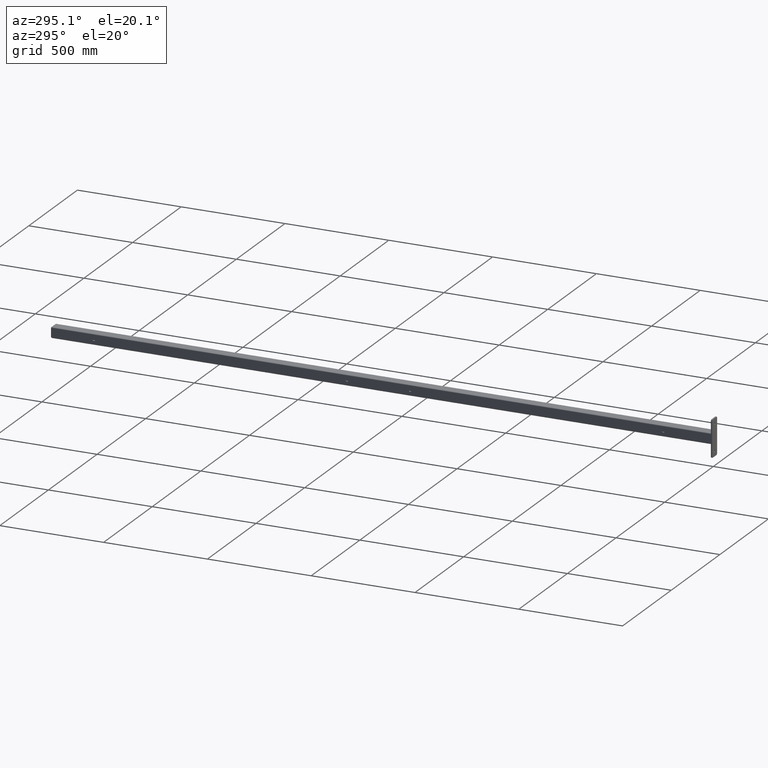
[diagram: clean part render]
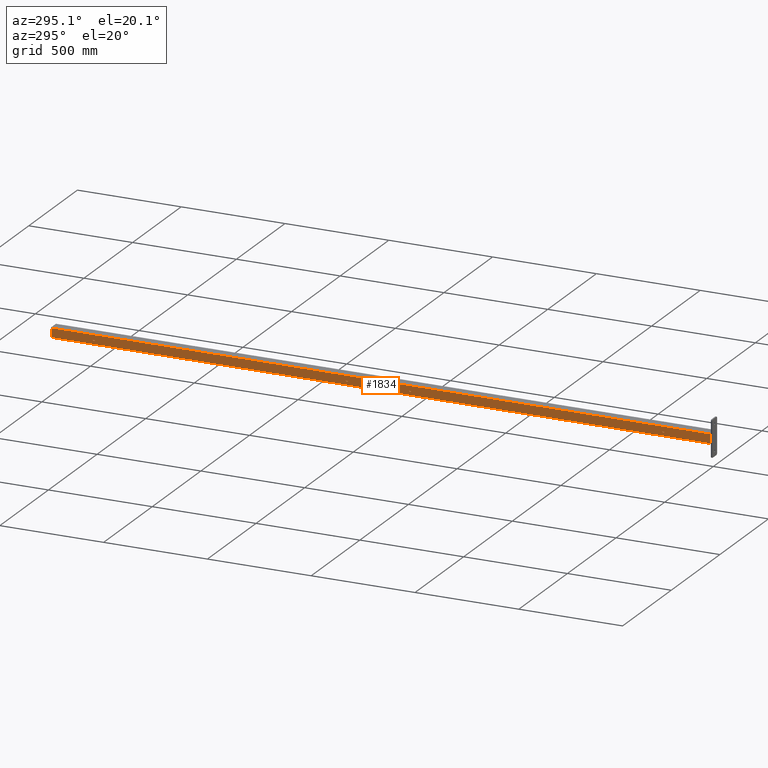
[diagram: same view with one face highlighted and labeled with its STEP entity id]
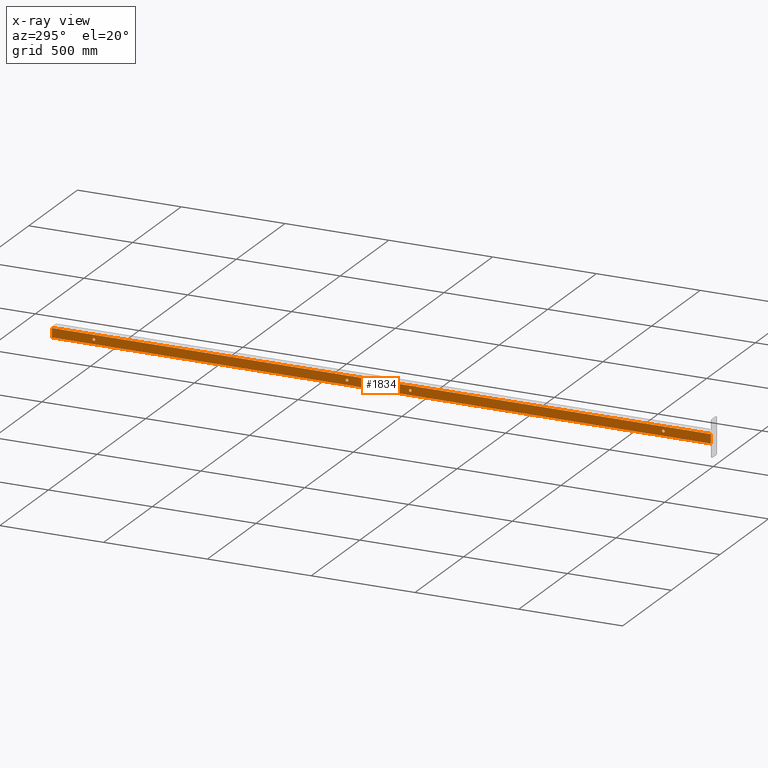
[diagram: x-ray of the same camera — body ghosted, the highlighted face saturated]
A machine part, auxiliary view. The second image highlights one B-rep face of the part: STEP entity #1834.
The next image is the same camera in x-ray: the body ghosted, the highlighted face saturated — about 0% of this face is hidden behind the body in this view.
In plain terms, the highlighted planar face has unit normal (1, 0, 0).
Its self-contained STEP definition (entity closure, byte-faithful):
#93 = CARTESIAN_POINT ( 'NONE',  ( -0.8505999999999999117, -1.000000000000000000, 62.50000000000000000 ) ) ;
#107 = VERTEX_POINT ( 'NONE', #757 ) ;
#143 = DIRECTION ( 'NONE',  ( 0.000000000000000000, 1.000000000000000000, 0.000000000000000000 ) ) ;
#213 = CARTESIAN_POINT ( 'NONE',  ( 0.8505999999999999117, -1.000000000000000000, 62.50000000000000000 ) ) ;
#230 = DIRECTION ( 'NONE',  ( 0.000000000000000000, 0.000000000000000000, 1.000000000000000000 ) ) ;
#299 = EDGE_CURVE ( 'NONE', #2016, #2016, #1312, .T. ) ;
#356 = CARTESIAN_POINT ( 'NONE',  ( -0.8505999999999999117, -1.000000000000000000, -62.50000000000000000 ) ) ;
#401 = AXIS2_PLACEMENT_3D ( 'NONE', #2730, #1375, #2339 ) ;
#411 = VERTEX_POINT ( 'NONE', #2324 ) ;
#476 = EDGE_CURVE ( 'NONE', #1298, #1298, #2250, .T. ) ;
#479 = FACE_BOUND ( 'NONE', #538, .T. ) ;
#493 = EDGE_CURVE ( 'NONE', #411, #411, #1382, .T. ) ;
#538 = EDGE_LOOP ( 'NONE', ( #3690 ) ) ;
#715 = CARTESIAN_POINT ( 'NONE',  ( -7.960204194457791533E-16, -1.000000000000000000, -6.249999999999997335 ) ) ;
#730 = DIRECTION ( 'NONE',  ( 0.000000000000000000, -0.000000000000000000, 1.000000000000000000 ) ) ;
#757 = CARTESIAN_POINT ( 'NONE',  ( 6.735557395310442023E-16, -1.000000000000000000, 5.750000000000001776 ) ) ;
#763 = CARTESIAN_POINT ( 'NONE',  ( -0.8505999999999999117, -1.000000000000000000, 62.50000000000000000 ) ) ;
#783 = FACE_OUTER_BOUND ( 'NONE', #1509, .T. ) ;
#878 = LINE ( 'NONE', #2822, #994 ) ;
#994 = VECTOR ( 'NONE', #1870, 39.37007874015748143 ) ;
#1067 = EDGE_LOOP ( 'NONE', ( #1279 ) ) ;
#1134 = ORIENTED_EDGE ( 'NONE', *, *, #3466, .F. ) ;
#1143 = EDGE_LOOP ( 'NONE', ( #1613 ) ) ;
#1203 = EDGE_LOOP ( 'NONE', ( #3966 ) ) ;
#1205 = CARTESIAN_POINT ( 'NONE',  ( -6.674325055353075830E-15, -1.000000000000000000, -54.50000000000000711 ) ) ;
#1279 = ORIENTED_EDGE ( 'NONE', *, *, #3039, .F. ) ;
#1292 = DIRECTION ( 'NONE',  ( -0.000000000000000000, -1.000000000000000000, -0.000000000000000000 ) ) ;
#1298 = VERTEX_POINT ( 'NONE', #715 ) ;
#1312 = CIRCLE ( 'NONE', #3635, 0.2500000000000030531 ) ;
#1313 = CARTESIAN_POINT ( 'NONE',  ( 6.556435184794231724E-15, -1.000000000000000000, 53.50000000000000000 ) ) ;
#1375 = DIRECTION ( 'NONE',  ( -0.000000000000000000, -1.000000000000000000, -0.000000000000000000 ) ) ;
#1382 = CIRCLE ( 'NONE', #1713, 0.2500000000000030531 ) ;
#1410 = DIRECTION ( 'NONE',  ( -0.000000000000000000, -0.000000000000000000, -1.000000000000000000 ) ) ;
#1509 = EDGE_LOOP ( 'NONE', ( #2087, #1903, #1134, #3214 ) ) ;
#1613 = ORIENTED_EDGE ( 'NONE', *, *, #476, .F. ) ;
#1657 = VERTEX_POINT ( 'NONE', #213 ) ;
#1682 = DIRECTION ( 'NONE',  ( 1.000000000000000000, 0.000000000000000000, 0.000000000000000000 ) ) ;
#1713 = AXIS2_PLACEMENT_3D ( 'NONE', #1205, #1878, #230 ) ;
#1745 = VERTEX_POINT ( 'NONE', #356 ) ;
#1746 = FACE_BOUND ( 'NONE', #1067, .T. ) ;
#1834 = ADVANCED_FACE ( 'NONE', ( #3929, #1746, #2041, #479, #783 ), #3906, .F. ) ;
#1840 = CARTESIAN_POINT ( 'NONE',  ( -0.8505999999999999117, -1.000000000000000000, -62.50000000000000000 ) ) ;
#1870 = DIRECTION ( 'NONE',  ( -0.000000000000000000, -0.000000000000000000, -1.000000000000000000 ) ) ;
#1878 = DIRECTION ( 'NONE',  ( -0.000000000000000000, -1.000000000000000000, -0.000000000000000000 ) ) ;
#1903 = ORIENTED_EDGE ( 'NONE', *, *, #4069, .F. ) ;
#2016 = VERTEX_POINT ( 'NONE', #3255 ) ;
#2041 = FACE_BOUND ( 'NONE', #1143, .T. ) ;
#2087 = ORIENTED_EDGE ( 'NONE', *, *, #2843, .T. ) ;
#2197 = CIRCLE ( 'NONE', #401, 0.2499999999999998057 ) ;
#2250 = CIRCLE ( 'NONE', #3044, 0.2499999999999998057 ) ;
#2259 = EDGE_CURVE ( 'NONE', #3077, #1745, #3881, .T. ) ;
#2324 = CARTESIAN_POINT ( 'NONE',  ( -6.674325055353075830E-15, -1.000000000000000000, -54.25000000000000000 ) ) ;
#2339 = DIRECTION ( 'NONE',  ( 0.000000000000000000, 0.000000000000000000, 1.000000000000000000 ) ) ;
#2374 = CARTESIAN_POINT ( 'NONE',  ( -0.8505999999999999117, -1.000000000000000000, 62.50000000000000000 ) ) ;
#2399 = VECTOR ( 'NONE', #1682, 39.37007874015748143 ) ;
#2712 = LINE ( 'NONE', #1840, #4054 ) ;
#2730 = CARTESIAN_POINT ( 'NONE',  ( 6.735557395310442023E-16, -1.000000000000000000, 5.500000000000001776 ) ) ;
#2822 = CARTESIAN_POINT ( 'NONE',  ( 0.8505999999999999117, -1.000000000000000000, 62.50000000000000000 ) ) ;
#2843 = EDGE_CURVE ( 'NONE', #1745, #3904, #2712, .T. ) ;
#3022 = CARTESIAN_POINT ( 'NONE',  ( -7.960204194457791533E-16, -1.000000000000000000, -6.499999999999996447 ) ) ;
#3039 = EDGE_CURVE ( 'NONE', #107, #107, #2197, .T. ) ;
#3044 = AXIS2_PLACEMENT_3D ( 'NONE', #3022, #3578, #3270 ) ;
#3046 = AXIS2_PLACEMENT_3D ( 'NONE', #3286, #143, #730 ) ;
#3077 = VERTEX_POINT ( 'NONE', #2374 ) ;
#3214 = ORIENTED_EDGE ( 'NONE', *, *, #2259, .T. ) ;
#3255 = CARTESIAN_POINT ( 'NONE',  ( 6.556435184794231724E-15, -1.000000000000000000, 53.75000000000000711 ) ) ;
#3270 = DIRECTION ( 'NONE',  ( 0.000000000000000000, 0.000000000000000000, 1.000000000000000000 ) ) ;
#3286 = CARTESIAN_POINT ( 'NONE',  ( -0.8505999999999999117, -1.000000000000000000, 62.50000000000000000 ) ) ;
#3446 = VECTOR ( 'NONE', #1410, 39.37007874015748143 ) ;
#3466 = EDGE_CURVE ( 'NONE', #3077, #1657, #3654, .T. ) ;
#3476 = DIRECTION ( 'NONE',  ( 0.000000000000000000, 0.000000000000000000, 1.000000000000000000 ) ) ;
#3549 = CARTESIAN_POINT ( 'NONE',  ( 0.8505999999999999117, -1.000000000000000000, -62.50000000000000000 ) ) ;
#3578 = DIRECTION ( 'NONE',  ( -0.000000000000000000, -1.000000000000000000, -0.000000000000000000 ) ) ;
#3635 = AXIS2_PLACEMENT_3D ( 'NONE', #1313, #1292, #3476 ) ;
#3654 = LINE ( 'NONE', #763, #2399 ) ;
#3690 = ORIENTED_EDGE ( 'NONE', *, *, #493, .F. ) ;
#3881 = LINE ( 'NONE', #93, #3446 ) ;
#3904 = VERTEX_POINT ( 'NONE', #3549 ) ;
#3906 = PLANE ( 'NONE',  #3046 ) ;
#3929 = FACE_BOUND ( 'NONE', #1203, .T. ) ;
#3966 = ORIENTED_EDGE ( 'NONE', *, *, #299, .F. ) ;
#3982 = DIRECTION ( 'NONE',  ( 1.000000000000000000, 0.000000000000000000, 0.000000000000000000 ) ) ;
#4054 = VECTOR ( 'NONE', #3982, 39.37007874015748143 ) ;
#4069 = EDGE_CURVE ( 'NONE', #1657, #3904, #878, .T. ) ;